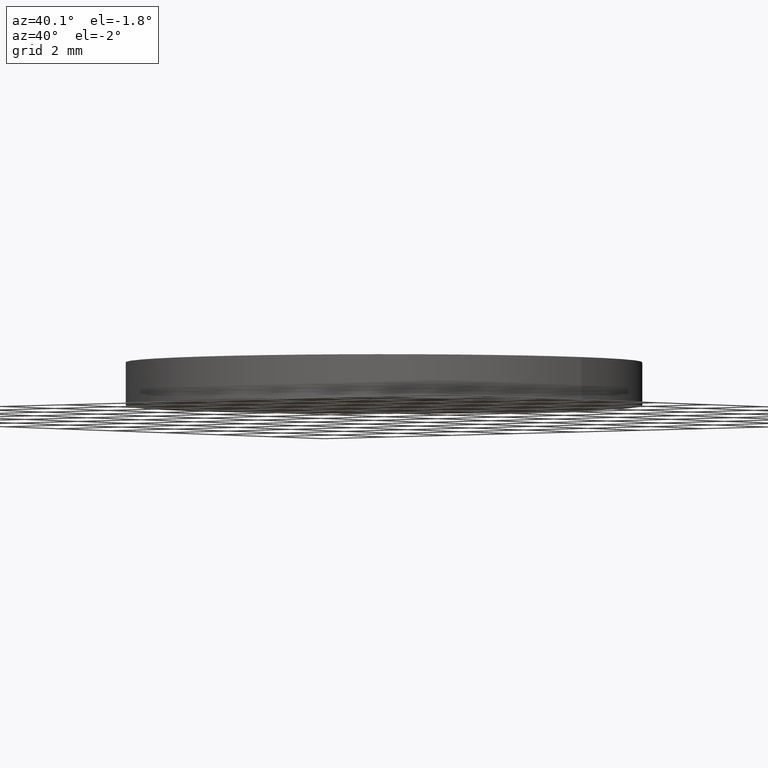
[diagram: clean part render]
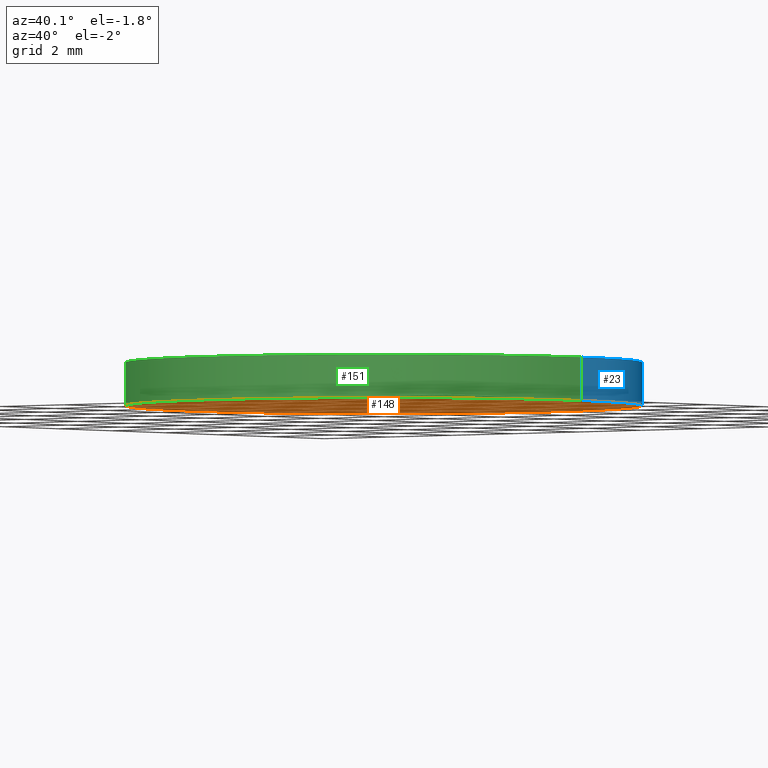
[diagram: same view with three faces highlighted in distinct colors, each labeled with its STEP entity id]
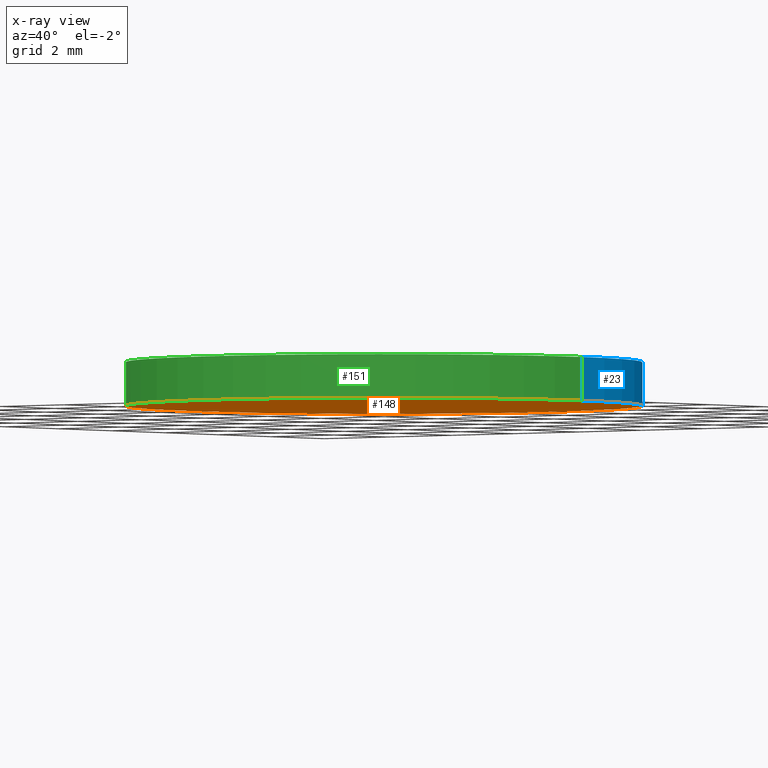
[diagram: x-ray of the same camera — body ghosted, the three highlighted faces saturated]
A machine part, auxiliary view with three faces highlighted in distinct colors.
The next image is the same camera in x-ray (body ghosted, the three faces saturated) — at least one of them is partly hidden behind the body in this view.
Their STEP definitions:

[orange] entity #148 — the highlighted planar face has unit normal (0, 0, 1).
#1 = CARTESIAN_POINT ( 'NONE',  ( 0.0000000000000000000, 0.0000000000000000000, 0.0000000000000000000 ) ) ;
#14 = PLANE ( 'NONE',  #106 ) ;
#31 = CARTESIAN_POINT ( 'NONE',  ( -6.249999999999998224, 0.0000000000000000000, 0.0000000000000000000 ) ) ;
#40 = EDGE_CURVE ( 'NONE', #155, #124, #43, .T. ) ;
#41 = CARTESIAN_POINT ( 'NONE',  ( 0.0000000000000000000, 0.0000000000000000000, 0.0000000000000000000 ) ) ;
#43 = CIRCLE ( 'NONE', #69, 6.249999999999998224 ) ;
#44 = DIRECTION ( 'NONE',  ( 0.0000000000000000000, 0.0000000000000000000, 1.000000000000000000 ) ) ;
#46 = CARTESIAN_POINT ( 'NONE',  ( 0.0000000000000000000, 0.0000000000000000000, 0.0000000000000000000 ) ) ;
#54 = CIRCLE ( 'NONE', #120, 6.249999999999998224 ) ;
#62 = DIRECTION ( 'NONE',  ( 0.0000000000000000000, 0.0000000000000000000, 1.000000000000000000 ) ) ;
#69 = AXIS2_PLACEMENT_3D ( 'NONE', #41, #111, #131 ) ;
#78 = EDGE_CURVE ( 'NONE', #124, #155, #54, .T. ) ;
#81 = ORIENTED_EDGE ( 'NONE', *, *, #40, .F. ) ;
#97 = CARTESIAN_POINT ( 'NONE',  ( 6.249999999999998224, 7.654042494670955634E-16, 0.0000000000000000000 ) ) ;
#106 = AXIS2_PLACEMENT_3D ( 'NONE', #1, #62, #115 ) ;
#111 = DIRECTION ( 'NONE',  ( 0.0000000000000000000, 0.0000000000000000000, 1.000000000000000000 ) ) ;
#115 = DIRECTION ( 'NONE',  ( 1.000000000000000000, 0.0000000000000000000, -0.0000000000000000000 ) ) ;
#120 = AXIS2_PLACEMENT_3D ( 'NONE', #46, #44, #133 ) ;
#124 = VERTEX_POINT ( 'NONE', #31 ) ;
#125 = EDGE_LOOP ( 'NONE', ( #142, #81 ) ) ;
#131 = DIRECTION ( 'NONE',  ( 1.000000000000000000, 0.0000000000000000000, 0.0000000000000000000 ) ) ;
#133 = DIRECTION ( 'NONE',  ( 1.000000000000000000, 0.0000000000000000000, 0.0000000000000000000 ) ) ;
#142 = ORIENTED_EDGE ( 'NONE', *, *, #78, .F. ) ;
#148 = ADVANCED_FACE ( 'NONE', ( #156 ), #14, .F. ) ;
#155 = VERTEX_POINT ( 'NONE', #97 ) ;
#156 = FACE_OUTER_BOUND ( 'NONE', #125, .T. ) ;

[blue] entity #23 — the highlighted cylindrical surface (partial cylindrical patch) has radius 6.25 mm, axis along (-0, -0, -1).
#8 = VECTOR ( 'NONE', #88, 1000.000000000000000 ) ;
#11 = CIRCLE ( 'NONE', #32, 6.249999999999998224 ) ;
#13 = LINE ( 'NONE', #100, #8 ) ;
#19 = CYLINDRICAL_SURFACE ( 'NONE', #123, 6.249999999999998224 ) ;
#22 = ORIENTED_EDGE ( 'NONE', *, *, #173, .T. ) ;
#23 = ADVANCED_FACE ( 'NONE', ( #175 ), #19, .T. ) ;
#25 = DIRECTION ( 'NONE',  ( 1.000000000000000000, 0.0000000000000000000, 0.0000000000000000000 ) ) ;
#31 = CARTESIAN_POINT ( 'NONE',  ( -6.249999999999998224, 0.0000000000000000000, 0.0000000000000000000 ) ) ;
#32 = AXIS2_PLACEMENT_3D ( 'NONE', #130, #83, #25 ) ;
#37 = ORIENTED_EDGE ( 'NONE', *, *, #40, .T. ) ;
#40 = EDGE_CURVE ( 'NONE', #155, #124, #43, .T. ) ;
#41 = CARTESIAN_POINT ( 'NONE',  ( 0.0000000000000000000, 0.0000000000000000000, 0.0000000000000000000 ) ) ;
#43 = CIRCLE ( 'NONE', #69, 6.249999999999998224 ) ;
#59 = EDGE_CURVE ( 'NONE', #161, #82, #11, .T. ) ;
#68 = EDGE_CURVE ( 'NONE', #82, #124, #71, .T. ) ;
#69 = AXIS2_PLACEMENT_3D ( 'NONE', #41, #111, #131 ) ;
#71 = LINE ( 'NONE', #145, #140 ) ;
#72 = CARTESIAN_POINT ( 'NONE',  ( 6.249999999999998224, 7.654042494670955634E-16, 1.050000000000000044 ) ) ;
#80 = DIRECTION ( 'NONE',  ( -0.0000000000000000000, -0.0000000000000000000, -1.000000000000000000 ) ) ;
#82 = VERTEX_POINT ( 'NONE', #114 ) ;
#83 = DIRECTION ( 'NONE',  ( 0.0000000000000000000, 0.0000000000000000000, 1.000000000000000000 ) ) ;
#88 = DIRECTION ( 'NONE',  ( -0.0000000000000000000, -0.0000000000000000000, -1.000000000000000000 ) ) ;
#93 = CARTESIAN_POINT ( 'NONE',  ( 0.0000000000000000000, 0.0000000000000000000, 1.050000000000000044 ) ) ;
#94 = EDGE_LOOP ( 'NONE', ( #104, #22, #37, #127 ) ) ;
#95 = DIRECTION ( 'NONE',  ( -0.0000000000000000000, -0.0000000000000000000, -1.000000000000000000 ) ) ;
#97 = CARTESIAN_POINT ( 'NONE',  ( 6.249999999999998224, 7.654042494670955634E-16, 0.0000000000000000000 ) ) ;
#100 = CARTESIAN_POINT ( 'NONE',  ( 6.249999999999998224, 7.654042494670955634E-16, 1.050000000000000044 ) ) ;
#104 = ORIENTED_EDGE ( 'NONE', *, *, #59, .F. ) ;
#111 = DIRECTION ( 'NONE',  ( 0.0000000000000000000, 0.0000000000000000000, 1.000000000000000000 ) ) ;
#114 = CARTESIAN_POINT ( 'NONE',  ( -6.249999999999998224, 0.0000000000000000000, 1.050000000000000044 ) ) ;
#123 = AXIS2_PLACEMENT_3D ( 'NONE', #93, #80, #141 ) ;
#124 = VERTEX_POINT ( 'NONE', #31 ) ;
#127 = ORIENTED_EDGE ( 'NONE', *, *, #68, .F. ) ;
#130 = CARTESIAN_POINT ( 'NONE',  ( 0.0000000000000000000, 0.0000000000000000000, 1.050000000000000044 ) ) ;
#131 = DIRECTION ( 'NONE',  ( 1.000000000000000000, 0.0000000000000000000, 0.0000000000000000000 ) ) ;
#140 = VECTOR ( 'NONE', #95, 1000.000000000000000 ) ;
#141 = DIRECTION ( 'NONE',  ( -1.000000000000000000, 0.0000000000000000000, 0.0000000000000000000 ) ) ;
#145 = CARTESIAN_POINT ( 'NONE',  ( -6.249999999999998224, 0.0000000000000000000, 1.050000000000000044 ) ) ;
#155 = VERTEX_POINT ( 'NONE', #97 ) ;
#161 = VERTEX_POINT ( 'NONE', #72 ) ;
#173 = EDGE_CURVE ( 'NONE', #161, #155, #13, .T. ) ;
#175 = FACE_OUTER_BOUND ( 'NONE', #94, .T. ) ;

[green] entity #151 — the highlighted cylindrical surface (partial cylindrical patch) has radius 6.25 mm, axis along (-0, -0, -1).
#3 = DIRECTION ( 'NONE',  ( 0.0000000000000000000, 0.0000000000000000000, 1.000000000000000000 ) ) ;
#8 = VECTOR ( 'NONE', #88, 1000.000000000000000 ) ;
#13 = LINE ( 'NONE', #100, #8 ) ;
#24 = ORIENTED_EDGE ( 'NONE', *, *, #78, .T. ) ;
#31 = CARTESIAN_POINT ( 'NONE',  ( -6.249999999999998224, 0.0000000000000000000, 0.0000000000000000000 ) ) ;
#38 = ORIENTED_EDGE ( 'NONE', *, *, #84, .F. ) ;
#44 = DIRECTION ( 'NONE',  ( 0.0000000000000000000, 0.0000000000000000000, 1.000000000000000000 ) ) ;
#46 = CARTESIAN_POINT ( 'NONE',  ( 0.0000000000000000000, 0.0000000000000000000, 0.0000000000000000000 ) ) ;
#47 = AXIS2_PLACEMENT_3D ( 'NONE', #143, #128, #144 ) ;
#54 = CIRCLE ( 'NONE', #120, 6.249999999999998224 ) ;
#68 = EDGE_CURVE ( 'NONE', #82, #124, #71, .T. ) ;
#71 = LINE ( 'NONE', #145, #140 ) ;
#72 = CARTESIAN_POINT ( 'NONE',  ( 6.249999999999998224, 7.654042494670955634E-16, 1.050000000000000044 ) ) ;
#78 = EDGE_CURVE ( 'NONE', #124, #155, #54, .T. ) ;
#82 = VERTEX_POINT ( 'NONE', #114 ) ;
#84 = EDGE_CURVE ( 'NONE', #82, #161, #147, .T. ) ;
#88 = DIRECTION ( 'NONE',  ( -0.0000000000000000000, -0.0000000000000000000, -1.000000000000000000 ) ) ;
#89 = AXIS2_PLACEMENT_3D ( 'NONE', #158, #3, #146 ) ;
#95 = DIRECTION ( 'NONE',  ( -0.0000000000000000000, -0.0000000000000000000, -1.000000000000000000 ) ) ;
#97 = CARTESIAN_POINT ( 'NONE',  ( 6.249999999999998224, 7.654042494670955634E-16, 0.0000000000000000000 ) ) ;
#100 = CARTESIAN_POINT ( 'NONE',  ( 6.249999999999998224, 7.654042494670955634E-16, 1.050000000000000044 ) ) ;
#105 = EDGE_LOOP ( 'NONE', ( #162, #38, #126, #24 ) ) ;
#114 = CARTESIAN_POINT ( 'NONE',  ( -6.249999999999998224, 0.0000000000000000000, 1.050000000000000044 ) ) ;
#120 = AXIS2_PLACEMENT_3D ( 'NONE', #46, #44, #133 ) ;
#124 = VERTEX_POINT ( 'NONE', #31 ) ;
#126 = ORIENTED_EDGE ( 'NONE', *, *, #68, .T. ) ;
#128 = DIRECTION ( 'NONE',  ( -0.0000000000000000000, -0.0000000000000000000, -1.000000000000000000 ) ) ;
#133 = DIRECTION ( 'NONE',  ( 1.000000000000000000, 0.0000000000000000000, 0.0000000000000000000 ) ) ;
#140 = VECTOR ( 'NONE', #95, 1000.000000000000000 ) ;
#143 = CARTESIAN_POINT ( 'NONE',  ( 0.0000000000000000000, 0.0000000000000000000, 1.050000000000000044 ) ) ;
#144 = DIRECTION ( 'NONE',  ( -1.000000000000000000, 0.0000000000000000000, 0.0000000000000000000 ) ) ;
#145 = CARTESIAN_POINT ( 'NONE',  ( -6.249999999999998224, 0.0000000000000000000, 1.050000000000000044 ) ) ;
#146 = DIRECTION ( 'NONE',  ( 1.000000000000000000, 0.0000000000000000000, 0.0000000000000000000 ) ) ;
#147 = CIRCLE ( 'NONE', #89, 6.249999999999998224 ) ;
#151 = ADVANCED_FACE ( 'NONE', ( #163 ), #167, .T. ) ;
#155 = VERTEX_POINT ( 'NONE', #97 ) ;
#158 = CARTESIAN_POINT ( 'NONE',  ( 0.0000000000000000000, 0.0000000000000000000, 1.050000000000000044 ) ) ;
#161 = VERTEX_POINT ( 'NONE', #72 ) ;
#162 = ORIENTED_EDGE ( 'NONE', *, *, #173, .F. ) ;
#163 = FACE_OUTER_BOUND ( 'NONE', #105, .T. ) ;
#167 = CYLINDRICAL_SURFACE ( 'NONE', #47, 6.249999999999998224 ) ;
#173 = EDGE_CURVE ( 'NONE', #161, #155, #13, .T. ) ;